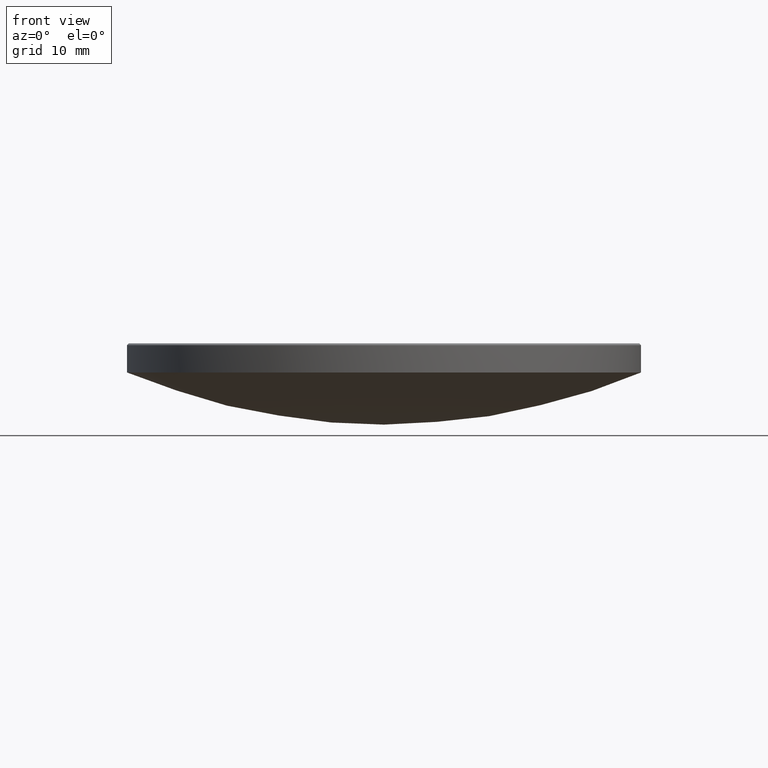
[diagram: clean part render]
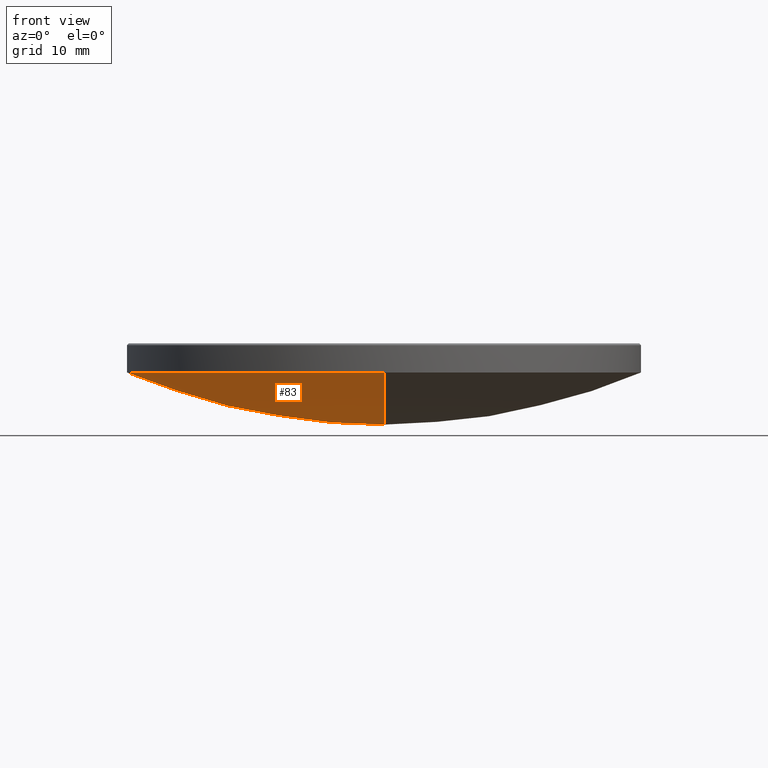
[diagram: same view with one face highlighted and labeled with its STEP entity id]
A machine part, front view. The second image highlights one B-rep face of the part: STEP entity #83.
In plain terms, the highlighted spherical surface has radius 65.16 mm.
Its self-contained STEP definition (entity closure, byte-faithful):
#16 = AXIS2_PLACEMENT_3D ( 'NONE', #89, #165, #255 ) ;
#37 = EDGE_CURVE ( 'NONE', #82, #161, #155, .T. ) ;
#44 = CARTESIAN_POINT ( 'NONE',  ( 0.000000000000000000, 25.39999999999998437, 12.99999999999999822 ) ) ;
#45 = FACE_OUTER_BOUND ( 'NONE', #100, .T. ) ;
#47 = SPHERICAL_SURFACE ( 'NONE', #190, 65.15999999999999659 ) ;
#52 = DIRECTION ( 'NONE',  ( 0.000000000000000000, 0.000000000000000000, -1.000000000000000000 ) ) ;
#56 = AXIS2_PLACEMENT_3D ( 'NONE', #199, #282, #242 ) ;
#63 = CIRCLE ( 'NONE', #269, 65.15999999999999659 ) ;
#69 = CARTESIAN_POINT ( 'NONE',  ( 0.000000000000000000, 3.989899271622076049E-15, 7.845546410311113661 ) ) ;
#82 = VERTEX_POINT ( 'NONE', #69 ) ;
#83 = ADVANCED_FACE ( 'NONE', ( #45 ), #47, .T. ) ;
#89 = CARTESIAN_POINT ( 'NONE',  ( 0.000000000000000000, 0.000000000000000000, 73.00554641031111203 ) ) ;
#100 = EDGE_LOOP ( 'NONE', ( #235, #211, #120, #108 ) ) ;
#102 = EDGE_CURVE ( 'NONE', #160, #161, #173, .T. ) ;
#108 = ORIENTED_EDGE ( 'NONE', *, *, #148, .F. ) ;
#112 = DIRECTION ( 'NONE',  ( 0.000000000000000000, 1.000000000000000000, 0.000000000000000000 ) ) ;
#115 = CARTESIAN_POINT ( 'NONE',  ( 0.000000000000000000, 0.000000000000000000, 73.00554641031111203 ) ) ;
#120 = ORIENTED_EDGE ( 'NONE', *, *, #102, .F. ) ;
#130 = CARTESIAN_POINT ( 'NONE',  ( -3.110602869834275682E-15, -25.39999999999998437, 12.99999999999999822 ) ) ;
#148 = EDGE_CURVE ( 'NONE', #164, #160, #159, .T. ) ;
#155 = CIRCLE ( 'NONE', #16, 65.15999999999999659 ) ;
#159 = CIRCLE ( 'NONE', #249, 25.39999999999999503 ) ;
#160 = VERTEX_POINT ( 'NONE', #261 ) ;
#161 = VERTEX_POINT ( 'NONE', #130 ) ;
#164 = VERTEX_POINT ( 'NONE', #44 ) ;
#165 = DIRECTION ( 'NONE',  ( -1.000000000000000000, 1.224646799147353207E-16, 0.000000000000000000 ) ) ;
#166 = DIRECTION ( 'NONE',  ( -0.000000000000000000, -0.000000000000000000, 1.000000000000000000 ) ) ;
#167 = DIRECTION ( 'NONE',  ( -1.000000000000000000, 0.000000000000000000, 0.000000000000000000 ) ) ;
#173 = CIRCLE ( 'NONE', #56, 25.39999999999999503 ) ;
#190 = AXIS2_PLACEMENT_3D ( 'NONE', #115, #167, #112 ) ;
#193 = DIRECTION ( 'NONE',  ( 1.000000000000000000, 0.000000000000000000, 0.000000000000000000 ) ) ;
#199 = CARTESIAN_POINT ( 'NONE',  ( 0.000000000000000000, 0.000000000000000000, 13.00000000000000000 ) ) ;
#200 = DIRECTION ( 'NONE',  ( 1.000000000000000000, -0.000000000000000000, 0.000000000000000000 ) ) ;
#211 = ORIENTED_EDGE ( 'NONE', *, *, #37, .T. ) ;
#235 = ORIENTED_EDGE ( 'NONE', *, *, #240, .F. ) ;
#238 = CARTESIAN_POINT ( 'NONE',  ( 0.000000000000000000, 0.000000000000000000, 13.00000000000000000 ) ) ;
#240 = EDGE_CURVE ( 'NONE', #82, #164, #63, .T. ) ;
#242 = DIRECTION ( 'NONE',  ( 1.000000000000000000, 0.000000000000000000, 0.000000000000000000 ) ) ;
#249 = AXIS2_PLACEMENT_3D ( 'NONE', #238, #166, #193 ) ;
#255 = DIRECTION ( 'NONE',  ( -1.224646799147352961E-16, -1.000000000000000000, 0.000000000000000000 ) ) ;
#261 = CARTESIAN_POINT ( 'NONE',  ( -25.39999999999999503, 0.000000000000000000, 13.00000000000000000 ) ) ;
#265 = CARTESIAN_POINT ( 'NONE',  ( 0.000000000000000000, 0.000000000000000000, 73.00554641031111203 ) ) ;
#269 = AXIS2_PLACEMENT_3D ( 'NONE', #265, #200, #52 ) ;
#282 = DIRECTION ( 'NONE',  ( -0.000000000000000000, -0.000000000000000000, 1.000000000000000000 ) ) ;